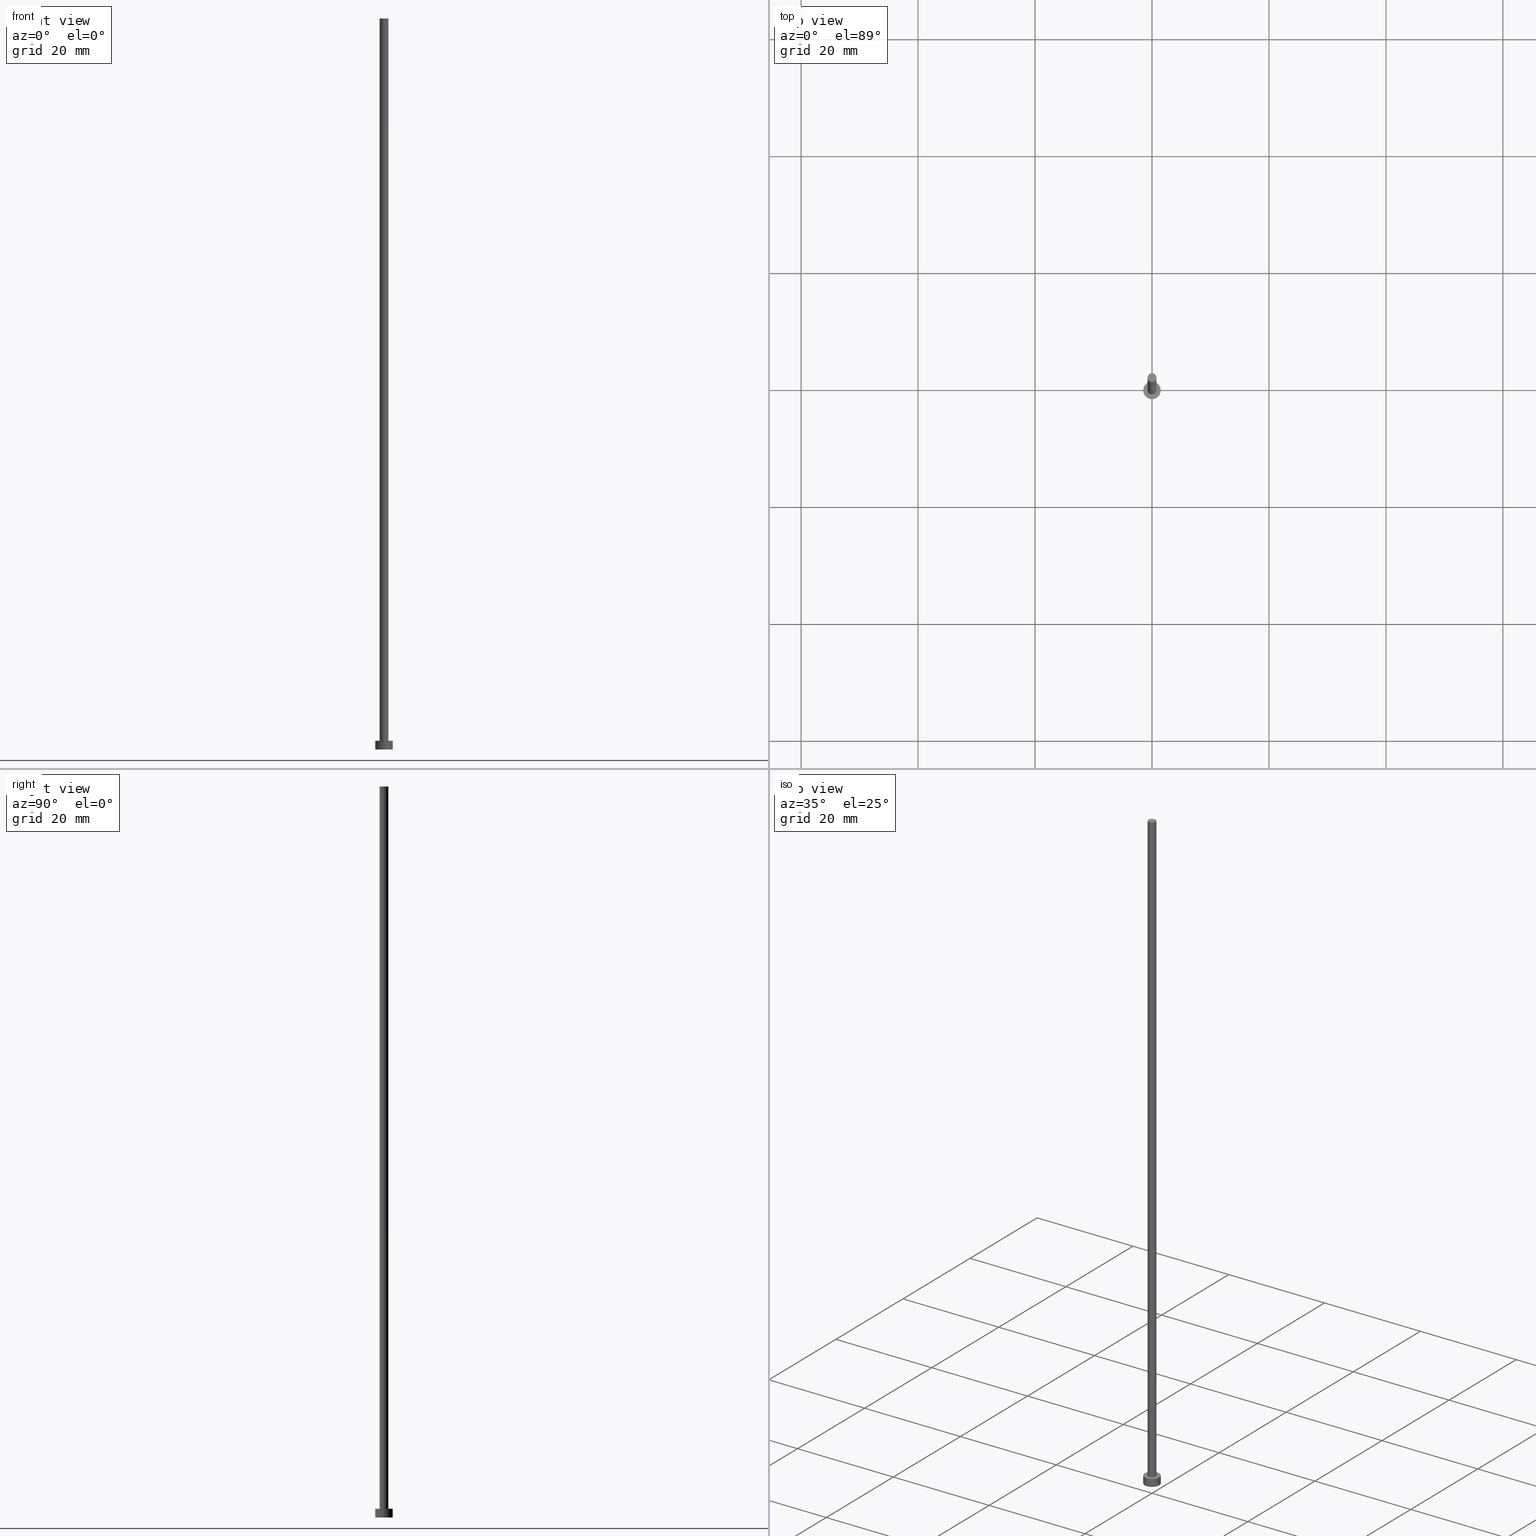
[diagram: canonical four-view strip — front | top / right | iso, engineering-drawing reading convention]
A machine part, canonical four-view strip (front | top / right | iso — engineering-drawing reading convention). The complete STEP part file that produces these views, byte-faithful:
ISO-10303-21;
HEADER;
FILE_DESCRIPTION (( 'STEP AP203' ),
    '1' );
FILE_NAME ('2677.STEP',
    '2023-02-13T15:24:55',
    ( '' ),
    ( '' ),
    'SwSTEP 2.0',
    'SolidWorks 2019',
    '' );
FILE_SCHEMA (( 'CONFIG_CONTROL_DESIGN' ));
ENDSEC;

DATA;
#1 = EDGE_CURVE ( 'NONE', #214, #29, #156, .T. ) ;
#2 = DESIGN_CONTEXT ( 'detailed design', #28, 'design' ) ;
#3 = VERTEX_POINT ( 'NONE', #35 ) ;
#4 = EDGE_CURVE ( 'NONE', #82, #172, #181, .T. ) ;
#5 = DATE_AND_TIME ( #160, #253 ) ;
#6 = APPLICATION_PROTOCOL_DEFINITION ( 'international standard', 'config_control_design', 1994, #146 ) ;
#7 = ORIENTED_EDGE ( 'NONE', *, *, #33, .F. ) ;
#8 = PERSON ( 'NEUR�EN�', 'NEUR�EN�', 'NEUR�EN�', ('NEUR�EN�'), ('NEUR�EN�'), ('NEUR�EN�') ) ;
#9 = AXIS2_PLACEMENT_3D ( 'NONE', #122, #81, #169 ) ;
#10 = FACE_BOUND ( 'NONE', #152, .T. ) ;
#11 = PERSON_AND_ORGANIZATION ( #8, #224 ) ;
#12 = CARTESIAN_POINT ( 'NONE',  ( -0.7500000000000001110, 0.000000000000000000, 125.0000000000000000 ) ) ;
#13 = APPROVAL ( #110, 'NEUR�EN�' ) ;
#14 = APPROVAL_ROLE ( '' ) ;
#15 = EDGE_CURVE ( 'NONE', #177, #210, #225, .T. ) ;
#16 = DIRECTION ( 'NONE',  ( -0.000000000000000000, -0.000000000000000000, -1.000000000000000000 ) ) ;
#17 = EDGE_CURVE ( 'NONE', #154, #82, #239, .T. ) ;
#18 = CARTESIAN_POINT ( 'NONE',  ( 0.000000000000000000, 0.000000000000000000, 0.000000000000000000 ) ) ;
#19 = AXIS2_PLACEMENT_3D ( 'NONE', #119, #241, #133 ) ;
#20 = CARTESIAN_POINT ( 'NONE',  ( 1.500000000000000222, 1.836970198721030181E-16, 1.500000000000000000 ) ) ;
#21 = FACE_OUTER_BOUND ( 'NONE', #131, .T. ) ;
#22 = DIRECTION ( 'NONE',  ( 1.000000000000000000, 0.000000000000000000, 0.000000000000000000 ) ) ;
#23 =( LENGTH_UNIT ( ) NAMED_UNIT ( * ) SI_UNIT ( .MILLI., .METRE. ) );
#24 = ORIENTED_EDGE ( 'NONE', *, *, #17, .F. ) ;
#25 = CARTESIAN_POINT ( 'NONE',  ( 0.000000000000000000, 0.000000000000000000, 0.000000000000000000 ) ) ;
#26 = EDGE_LOOP ( 'NONE', ( #7, #45 ) ) ;
#27 = CALENDAR_DATE ( 2023, 13, 2 ) ;
#28 = APPLICATION_CONTEXT ( 'configuration controlled 3d designs of mechanical parts and assemblies' ) ;
#29 = VERTEX_POINT ( 'NONE', #219 ) ;
#30 = CARTESIAN_POINT ( 'NONE',  ( 0.7500000000000001110, 9.184850993605150903E-17, 1.500000000000000000 ) ) ;
#31 = DIRECTION ( 'NONE',  ( 1.000000000000000000, 0.000000000000000000, 0.000000000000000000 ) ) ;
#32 = ADVANCED_FACE ( 'NONE', ( #36 ), #236, .F. ) ;
#33 = EDGE_CURVE ( 'NONE', #3, #172, #201, .T. ) ;
#34 = SECURITY_CLASSIFICATION_LEVEL ( 'unclassified' ) ;
#35 = CARTESIAN_POINT ( 'NONE',  ( -1.500000000000000222, 0.000000000000000000, 0.000000000000000000 ) ) ;
#36 = FACE_OUTER_BOUND ( 'NONE', #26, .T. ) ;
#37 = APPROVAL_PERSON_ORGANIZATION ( #230, #207, #85 ) ;
#38 = AXIS2_PLACEMENT_3D ( 'NONE', #163, #99, #251 ) ;
#39 = CARTESIAN_POINT ( 'NONE',  ( 0.000000000000000000, 0.000000000000000000, 1.500000000000000000 ) ) ;
#40 = CARTESIAN_POINT ( 'NONE',  ( 0.000000000000000000, 0.000000000000000000, 1.500000000000000000 ) ) ;
#41 = CYLINDRICAL_SURFACE ( 'NONE', #9, 0.7500000000000001110 ) ;
#42 = CIRCLE ( 'NONE', #125, 1.500000000000000222 ) ;
#43 = AXIS2_PLACEMENT_3D ( 'NONE', #237, #161, #58 ) ;
#44 = ORIENTED_EDGE ( 'NONE', *, *, #104, .T. ) ;
#45 = ORIENTED_EDGE ( 'NONE', *, *, #166, .F. ) ;
#46 = APPROVAL_ROLE ( '' ) ;
#47 = ORIENTED_EDGE ( 'NONE', *, *, #141, .F. ) ;
#48 = CC_DESIGN_APPROVAL ( #13, ( #222 ) ) ;
#49 = COORDINATED_UNIVERSAL_TIME_OFFSET ( 1, 0, .AHEAD. ) ;
#50 = DATE_AND_TIME ( #129, #186 ) ;
#51 = ORIENTED_EDGE ( 'NONE', *, *, #15, .T. ) ;
#52 = MECHANICAL_CONTEXT ( 'NONE', #146, 'mechanical' ) ;
#53 = FACE_OUTER_BOUND ( 'NONE', #229, .T. ) ;
#54 = CLOSED_SHELL ( 'NONE', ( #90, #84, #223, #178, #32, #238, #78 ) ) ;
#55 = COORDINATED_UNIVERSAL_TIME_OFFSET ( 1, 0, .AHEAD. ) ;
#56 = DIRECTION ( 'NONE',  ( 1.000000000000000000, 0.000000000000000000, -0.000000000000000000 ) ) ;
#57 = EDGE_CURVE ( 'NONE', #154, #3, #167, .T. ) ;
#58 = DIRECTION ( 'NONE',  ( -1.000000000000000000, 0.000000000000000000, 0.000000000000000000 ) ) ;
#59 = DIRECTION ( 'NONE',  ( 1.000000000000000000, 0.000000000000000000, 0.000000000000000000 ) ) ;
#60 = DIRECTION ( 'NONE',  ( 1.000000000000000000, 0.000000000000000000, 0.000000000000000000 ) ) ;
#61 = EDGE_LOOP ( 'NONE', ( #188, #103, #51, #128 ) ) ;
#62 = ORIENTED_EDGE ( 'NONE', *, *, #4, .T. ) ;
#63 = DATE_TIME_ROLE ( 'creation_date' ) ;
#64 = ORIENTED_EDGE ( 'NONE', *, *, #242, .F. ) ;
#65 = CC_DESIGN_APPROVAL ( #207, ( #196 ) ) ;
#66 = CIRCLE ( 'NONE', #120, 1.500000000000000222 ) ;
#67 = LOCAL_TIME ( 16, 24, 55.00000000000000000, #55 ) ;
#68 = ADVANCED_BREP_SHAPE_REPRESENTATION ( '2677', ( #227, #183 ), #74 ) ;
#69 = ORIENTED_EDGE ( 'NONE', *, *, #104, .F. ) ;
#70 = PERSON_AND_ORGANIZATION ( #8, #224 ) ;
#71 = DIRECTION ( 'NONE',  ( 1.000000000000000000, 0.000000000000000000, 0.000000000000000000 ) ) ;
#72 = DIRECTION ( 'NONE',  ( 1.000000000000000000, 0.000000000000000000, 0.000000000000000000 ) ) ;
#73 = CARTESIAN_POINT ( 'NONE',  ( 0.000000000000000000, 0.000000000000000000, 125.0000000000000000 ) ) ;
#74 =( GEOMETRIC_REPRESENTATION_CONTEXT ( 3 ) GLOBAL_UNCERTAINTY_ASSIGNED_CONTEXT ( ( #150 ) ) GLOBAL_UNIT_ASSIGNED_CONTEXT ( ( #23, #83, #249 ) ) REPRESENTATION_CONTEXT ( 'NONE', 'WORKASPACE' ) );
#75 = CYLINDRICAL_SURFACE ( 'NONE', #43, 0.7500000000000001110 ) ;
#76 = CC_DESIGN_SECURITY_CLASSIFICATION ( #222, ( #196 ) ) ;
#77 = DIRECTION ( 'NONE',  ( 0.000000000000000000, 0.000000000000000000, 1.000000000000000000 ) ) ;
#78 = ADVANCED_FACE ( 'NONE', ( #137 ), #240, .T. ) ;
#79 = LINE ( 'NONE', #220, #134 ) ;
#80 = CARTESIAN_POINT ( 'NONE',  ( 0.000000000000000000, 0.000000000000000000, 1.500000000000000000 ) ) ;
#81 = DIRECTION ( 'NONE',  ( -0.000000000000000000, -0.000000000000000000, -1.000000000000000000 ) ) ;
#82 = VERTEX_POINT ( 'NONE', #20 ) ;
#83 =( NAMED_UNIT ( * ) PLANE_ANGLE_UNIT ( ) SI_UNIT ( $, .RADIAN. ) );
#84 = ADVANCED_FACE ( 'NONE', ( #198 ), #180, .T. ) ;
#85 = APPROVAL_ROLE ( '' ) ;
#86 = ORIENTED_EDGE ( 'NONE', *, *, #242, .T. ) ;
#87 = COORDINATED_UNIVERSAL_TIME_OFFSET ( 1, 0, .AHEAD. ) ;
#88 = ORIENTED_EDGE ( 'NONE', *, *, #113, .T. ) ;
#89 = PRODUCT_RELATED_PRODUCT_CATEGORY ( 'detail', '', ( #102 ) ) ;
#90 = ADVANCED_FACE ( 'NONE', ( #185 ), #75, .T. ) ;
#91 = CC_DESIGN_APPROVAL ( #147, ( #175 ) ) ;
#92 = APPROVAL_STATUS ( 'not_yet_approved' ) ;
#93 = DIRECTION ( 'NONE',  ( 0.000000000000000000, 0.000000000000000000, 1.000000000000000000 ) ) ;
#94 = PERSON_AND_ORGANIZATION_ROLE ( 'design_owner' ) ;
#95 = PLANE ( 'NONE',  #173 ) ;
#96 = APPROVAL_DATE_TIME ( #250, #147 ) ;
#97 = CARTESIAN_POINT ( 'NONE',  ( 0.000000000000000000, 0.000000000000000000, 125.0000000000000000 ) ) ;
#98 = CARTESIAN_POINT ( 'NONE',  ( 1.500000000000000222, 1.836970198721030181E-16, 0.000000000000000000 ) ) ;
#99 = DIRECTION ( 'NONE',  ( -0.000000000000000000, -0.000000000000000000, -1.000000000000000000 ) ) ;
#100 = VECTOR ( 'NONE', #16, 1000.000000000000000 ) ;
#101 = CYLINDRICAL_SURFACE ( 'NONE', #114, 1.500000000000000222 ) ;
#102 = PRODUCT ( '2677', '2677', '', ( #52 ) ) ;
#103 = ORIENTED_EDGE ( 'NONE', *, *, #126, .T. ) ;
#104 = EDGE_CURVE ( 'NONE', #82, #154, #66, .T. ) ;
#105 = CARTESIAN_POINT ( 'NONE',  ( -0.7500000000000001110, 0.000000000000000000, 1.500000000000000000 ) ) ;
#106 = AXIS2_PLACEMENT_3D ( 'NONE', #73, #93, #233 ) ;
#107 = ORIENTED_EDGE ( 'NONE', *, *, #1, .T. ) ;
#108 = PERSON_AND_ORGANIZATION_ROLE ( 'creator' ) ;
#109 = ORIENTED_EDGE ( 'NONE', *, *, #33, .T. ) ;
#110 = APPROVAL_STATUS ( 'not_yet_approved' ) ;
#111 = EDGE_LOOP ( 'NONE', ( #69, #62, #212, #157 ) ) ;
#112 = CARTESIAN_POINT ( 'NONE',  ( -1.500000000000000222, 0.000000000000000000, 1.500000000000000000 ) ) ;
#113 = EDGE_CURVE ( 'NONE', #29, #210, #145, .T. ) ;
#114 = AXIS2_PLACEMENT_3D ( 'NONE', #40, #187, #148 ) ;
#115 = DIRECTION ( 'NONE',  ( 0.000000000000000000, 0.000000000000000000, 1.000000000000000000 ) ) ;
#116 = CC_DESIGN_PERSON_AND_ORGANIZATION_ASSIGNMENT ( #211, #108, ( #196 ) ) ;
#117 = SHAPE_DEFINITION_REPRESENTATION ( #170, #68 ) ;
#118 = CARTESIAN_POINT ( 'NONE',  ( 0.000000000000000000, 0.000000000000000000, 0.000000000000000000 ) ) ;
#119 = CARTESIAN_POINT ( 'NONE',  ( 0.000000000000000000, 0.000000000000000000, 1.500000000000000000 ) ) ;
#120 = AXIS2_PLACEMENT_3D ( 'NONE', #138, #255, #197 ) ;
#121 = DIRECTION ( 'NONE',  ( 0.000000000000000000, 0.000000000000000000, 1.000000000000000000 ) ) ;
#122 = CARTESIAN_POINT ( 'NONE',  ( 0.000000000000000000, 0.000000000000000000, 125.0000000000000000 ) ) ;
#123 = DIRECTION ( 'NONE',  ( 0.000000000000000000, 0.000000000000000000, 1.000000000000000000 ) ) ;
#124 = AXIS2_PLACEMENT_3D ( 'NONE', #97, #142, #202 ) ;
#125 = AXIS2_PLACEMENT_3D ( 'NONE', #18, #115, #60 ) ;
#126 = EDGE_CURVE ( 'NONE', #214, #177, #79, .T. ) ;
#127 = FACE_OUTER_BOUND ( 'NONE', #159, .T. ) ;
#128 = ORIENTED_EDGE ( 'NONE', *, *, #113, .F. ) ;
#129 = CALENDAR_DATE ( 2023, 13, 2 ) ;
#130 = DATE_AND_TIME ( #153, #67 ) ;
#131 = EDGE_LOOP ( 'NONE', ( #231, #24, #190, #109 ) ) ;
#132 = PERSON_AND_ORGANIZATION_ROLE ( 'design_supplier' ) ;
#133 = DIRECTION ( 'NONE',  ( 1.000000000000000000, 0.000000000000000000, 0.000000000000000000 ) ) ;
#134 = VECTOR ( 'NONE', #168, 1000.000000000000000 ) ;
#135 = CC_DESIGN_DATE_AND_TIME_ASSIGNMENT ( #130, #63, ( #175 ) ) ;
#136 = COORDINATED_UNIVERSAL_TIME_OFFSET ( 1, 0, .AHEAD. ) ;
#137 = FACE_OUTER_BOUND ( 'NONE', #228, .T. ) ;
#138 = CARTESIAN_POINT ( 'NONE',  ( 0.000000000000000000, 0.000000000000000000, 1.500000000000000000 ) ) ;
#139 = CC_DESIGN_PERSON_AND_ORGANIZATION_ASSIGNMENT ( #215, #194, ( #175 ) ) ;
#140 = VECTOR ( 'NONE', #248, 1000.000000000000000 ) ;
#141 = EDGE_CURVE ( 'NONE', #210, #177, #164, .T. ) ;
#142 = DIRECTION ( 'NONE',  ( 0.000000000000000000, 0.000000000000000000, 1.000000000000000000 ) ) ;
#143 = CC_DESIGN_PERSON_AND_ORGANIZATION_ASSIGNMENT ( #213, #94, ( #102 ) ) ;
#144 = AXIS2_PLACEMENT_3D ( 'NONE', #184, #217, #71 ) ;
#145 = LINE ( 'NONE', #12, #221 ) ;
#146 = APPLICATION_CONTEXT ( 'configuration controlled 3d designs of mechanical parts and assemblies' ) ;
#147 = APPROVAL ( #155, 'NEUR�EN�' ) ;
#148 = DIRECTION ( 'NONE',  ( -1.000000000000000000, 0.000000000000000000, 0.000000000000000000 ) ) ;
#149 = AXIS2_PLACEMENT_3D ( 'NONE', #243, #189, #22 ) ;
#150 = UNCERTAINTY_MEASURE_WITH_UNIT (LENGTH_MEASURE( 1.000000000000000082E-05 ), #23, 'distance_accuracy_value', 'NONE');
#151 = DIRECTION ( 'NONE',  ( 1.000000000000000000, 0.000000000000000000, -0.000000000000000000 ) ) ;
#152 = EDGE_LOOP ( 'NONE', ( #47, #174 ) ) ;
#153 = CALENDAR_DATE ( 2023, 13, 2 ) ;
#154 = VERTEX_POINT ( 'NONE', #199 ) ;
#155 = APPROVAL_STATUS ( 'not_yet_approved' ) ;
#156 = CIRCLE ( 'NONE', #106, 0.7500000000000001110 ) ;
#157 = ORIENTED_EDGE ( 'NONE', *, *, #57, .F. ) ;
#158 = APPLICATION_PROTOCOL_DEFINITION ( 'international standard', 'config_control_design', 1994, #28 ) ;
#159 = EDGE_LOOP ( 'NONE', ( #244, #64, #88, #246 ) ) ;
#160 = CALENDAR_DATE ( 2023, 13, 2 ) ;
#161 = DIRECTION ( 'NONE',  ( -0.000000000000000000, -0.000000000000000000, -1.000000000000000000 ) ) ;
#162 = CARTESIAN_POINT ( 'NONE',  ( 1.500000000000000222, 1.836970198721030181E-16, 1.500000000000000000 ) ) ;
#163 = CARTESIAN_POINT ( 'NONE',  ( 0.000000000000000000, 0.000000000000000000, 1.500000000000000000 ) ) ;
#164 = CIRCLE ( 'NONE', #19, 0.7500000000000001110 ) ;
#165 = APPROVAL_PERSON_ORGANIZATION ( #11, #147, #46 ) ;
#166 = EDGE_CURVE ( 'NONE', #172, #3, #42, .T. ) ;
#167 = LINE ( 'NONE', #112, #140 ) ;
#168 = DIRECTION ( 'NONE',  ( -0.000000000000000000, -0.000000000000000000, -1.000000000000000000 ) ) ;
#169 = DIRECTION ( 'NONE',  ( -1.000000000000000000, 0.000000000000000000, 0.000000000000000000 ) ) ;
#170 = PRODUCT_DEFINITION_SHAPE ( 'NONE', 'NONE',  #175 ) ;
#171 = CC_DESIGN_DATE_AND_TIME_ASSIGNMENT ( #218, #191, ( #222 ) ) ;
#172 = VERTEX_POINT ( 'NONE', #98 ) ;
#173 = AXIS2_PLACEMENT_3D ( 'NONE', #80, #123, #151 ) ;
#174 = ORIENTED_EDGE ( 'NONE', *, *, #15, .F. ) ;
#175 = PRODUCT_DEFINITION ( 'NEZN�M�', '', #196, #2 ) ;
#176 = COORDINATED_UNIVERSAL_TIME_OFFSET ( 1, 0, .AHEAD. ) ;
#177 = VERTEX_POINT ( 'NONE', #30 ) ;
#178 = ADVANCED_FACE ( 'NONE', ( #10, #53 ), #95, .T. ) ;
#179 = PERSON_AND_ORGANIZATION ( #8, #224 ) ;
#180 = CYLINDRICAL_SURFACE ( 'NONE', #38, 1.500000000000000222 ) ;
#181 = LINE ( 'NONE', #162, #100 ) ;
#182 = DIRECTION ( 'NONE',  ( 0.000000000000000000, 0.000000000000000000, 1.000000000000000000 ) ) ;
#183 = AXIS2_PLACEMENT_3D ( 'NONE', #25, #245, #72 ) ;
#184 = CARTESIAN_POINT ( 'NONE',  ( 0.000000000000000000, 0.000000000000000000, 1.500000000000000000 ) ) ;
#185 = FACE_OUTER_BOUND ( 'NONE', #61, .T. ) ;
#186 = LOCAL_TIME ( 16, 24, 55.00000000000000000, #49 ) ;
#187 = DIRECTION ( 'NONE',  ( -0.000000000000000000, -0.000000000000000000, -1.000000000000000000 ) ) ;
#188 = ORIENTED_EDGE ( 'NONE', *, *, #1, .F. ) ;
#189 = DIRECTION ( 'NONE',  ( 0.000000000000000000, 0.000000000000000000, 1.000000000000000000 ) ) ;
#190 = ORIENTED_EDGE ( 'NONE', *, *, #57, .T. ) ;
#191 = DATE_TIME_ROLE ( 'classification_date' ) ;
#192 = APPROVAL_DATE_TIME ( #5, #13 ) ;
#193 = ORIENTED_EDGE ( 'NONE', *, *, #17, .T. ) ;
#194 = PERSON_AND_ORGANIZATION_ROLE ( 'creator' ) ;
#195 = DIRECTION ( 'NONE',  ( -0.000000000000000000, -0.000000000000000000, -1.000000000000000000 ) ) ;
#196 = PRODUCT_DEFINITION_FORMATION_WITH_SPECIFIED_SOURCE ( 'LIBOVOLN�', '', #102, .NOT_KNOWN. ) ;
#197 = DIRECTION ( 'NONE',  ( 1.000000000000000000, 0.000000000000000000, 0.000000000000000000 ) ) ;
#198 = FACE_OUTER_BOUND ( 'NONE', #111, .T. ) ;
#199 = CARTESIAN_POINT ( 'NONE',  ( -1.500000000000000222, 0.000000000000000000, 1.500000000000000000 ) ) ;
#200 = CC_DESIGN_PERSON_AND_ORGANIZATION_ASSIGNMENT ( #179, #234, ( #222 ) ) ;
#201 = CIRCLE ( 'NONE', #235, 1.500000000000000222 ) ;
#202 = DIRECTION ( 'NONE',  ( 1.000000000000000000, 0.000000000000000000, -0.000000000000000000 ) ) ;
#203 = CC_DESIGN_PERSON_AND_ORGANIZATION_ASSIGNMENT ( #247, #132, ( #196 ) ) ;
#204 = AXIS2_PLACEMENT_3D ( 'NONE', #39, #182, #59 ) ;
#205 = LOCAL_TIME ( 16, 24, 55.00000000000000000, #136 ) ;
#206 = CARTESIAN_POINT ( 'NONE',  ( 0.7500000000000001110, 9.184850993605150903E-17, 125.0000000000000000 ) ) ;
#207 = APPROVAL ( #92, 'NEUR�EN�' ) ;
#208 = AXIS2_PLACEMENT_3D ( 'NONE', #254, #77, #56 ) ;
#209 = APPROVAL_DATE_TIME ( #50, #207 ) ;
#210 = VERTEX_POINT ( 'NONE', #105 ) ;
#211 = PERSON_AND_ORGANIZATION ( #8, #224 ) ;
#212 = ORIENTED_EDGE ( 'NONE', *, *, #166, .T. ) ;
#213 = PERSON_AND_ORGANIZATION ( #8, #224 ) ;
#214 = VERTEX_POINT ( 'NONE', #206 ) ;
#215 = PERSON_AND_ORGANIZATION ( #8, #224 ) ;
#216 = LOCAL_TIME ( 16, 24, 55.00000000000000000, #176 ) ;
#217 = DIRECTION ( 'NONE',  ( 0.000000000000000000, 0.000000000000000000, 1.000000000000000000 ) ) ;
#218 = DATE_AND_TIME ( #27, #205 ) ;
#219 = CARTESIAN_POINT ( 'NONE',  ( -0.7500000000000001110, 0.000000000000000000, 125.0000000000000000 ) ) ;
#220 = CARTESIAN_POINT ( 'NONE',  ( 0.7500000000000001110, 9.184850993605150903E-17, 125.0000000000000000 ) ) ;
#221 = VECTOR ( 'NONE', #195, 1000.000000000000000 ) ;
#222 = SECURITY_CLASSIFICATION ( '', '', #34 ) ;
#223 = ADVANCED_FACE ( 'NONE', ( #21 ), #101, .T. ) ;
#224 = ORGANIZATION ( 'NEUR�EN�', 'NEUR�EN�', '' ) ;
#225 = CIRCLE ( 'NONE', #204, 0.7500000000000001110 ) ;
#226 = APPROVAL_PERSON_ORGANIZATION ( #70, #13, #14 ) ;
#227 = MANIFOLD_SOLID_BREP ( 'P�idat vysunut�m3', #54 ) ;
#228 = EDGE_LOOP ( 'NONE', ( #86, #107 ) ) ;
#229 = EDGE_LOOP ( 'NONE', ( #193, #44 ) ) ;
#230 = PERSON_AND_ORGANIZATION ( #8, #224 ) ;
#231 = ORIENTED_EDGE ( 'NONE', *, *, #4, .F. ) ;
#232 = CALENDAR_DATE ( 2023, 13, 2 ) ;
#233 = DIRECTION ( 'NONE',  ( 1.000000000000000000, 0.000000000000000000, 0.000000000000000000 ) ) ;
#234 = PERSON_AND_ORGANIZATION_ROLE ( 'classification_officer' ) ;
#235 = AXIS2_PLACEMENT_3D ( 'NONE', #118, #121, #31 ) ;
#236 = PLANE ( 'NONE',  #208 ) ;
#237 = CARTESIAN_POINT ( 'NONE',  ( 0.000000000000000000, 0.000000000000000000, 125.0000000000000000 ) ) ;
#238 = ADVANCED_FACE ( 'NONE', ( #127 ), #41, .T. ) ;
#239 = CIRCLE ( 'NONE', #144, 1.500000000000000222 ) ;
#240 = PLANE ( 'NONE',  #124 ) ;
#241 = DIRECTION ( 'NONE',  ( 0.000000000000000000, 0.000000000000000000, 1.000000000000000000 ) ) ;
#242 = EDGE_CURVE ( 'NONE', #29, #214, #252, .T. ) ;
#243 = CARTESIAN_POINT ( 'NONE',  ( 0.000000000000000000, 0.000000000000000000, 125.0000000000000000 ) ) ;
#244 = ORIENTED_EDGE ( 'NONE', *, *, #126, .F. ) ;
#245 = DIRECTION ( 'NONE',  ( 0.000000000000000000, 0.000000000000000000, 1.000000000000000000 ) ) ;
#246 = ORIENTED_EDGE ( 'NONE', *, *, #141, .T. ) ;
#247 = PERSON_AND_ORGANIZATION ( #8, #224 ) ;
#248 = DIRECTION ( 'NONE',  ( -0.000000000000000000, -0.000000000000000000, -1.000000000000000000 ) ) ;
#249 =( NAMED_UNIT ( * ) SI_UNIT ( $, .STERADIAN. ) SOLID_ANGLE_UNIT ( ) );
#250 = DATE_AND_TIME ( #232, #216 ) ;
#251 = DIRECTION ( 'NONE',  ( -1.000000000000000000, 0.000000000000000000, 0.000000000000000000 ) ) ;
#252 = CIRCLE ( 'NONE', #149, 0.7500000000000001110 ) ;
#253 = LOCAL_TIME ( 16, 24, 55.00000000000000000, #87 ) ;
#254 = CARTESIAN_POINT ( 'NONE',  ( 0.000000000000000000, 0.000000000000000000, 0.000000000000000000 ) ) ;
#255 = DIRECTION ( 'NONE',  ( 0.000000000000000000, 0.000000000000000000, 1.000000000000000000 ) ) ;
ENDSEC;
END-ISO-10303-21;
